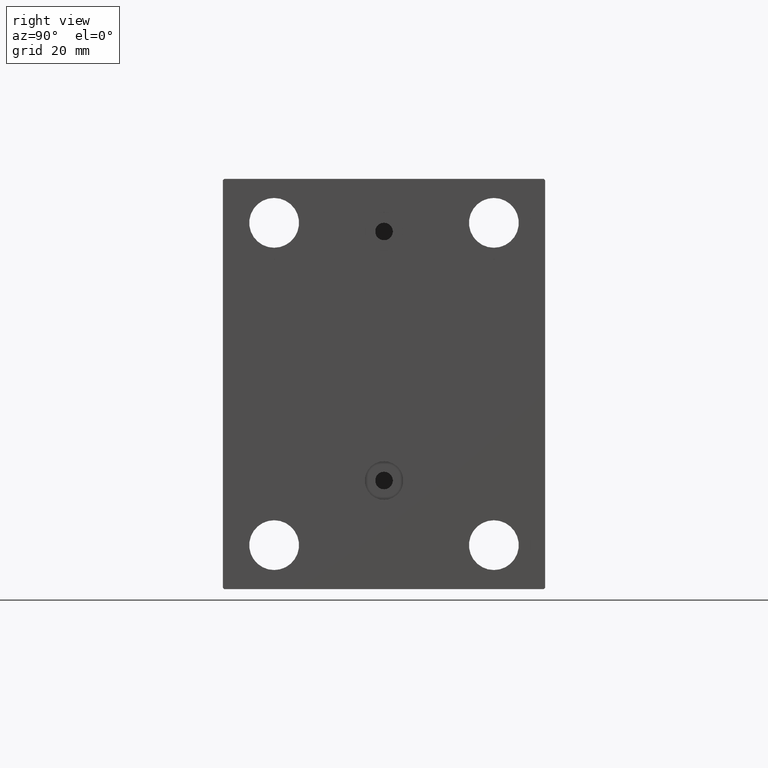
[diagram: clean part render]
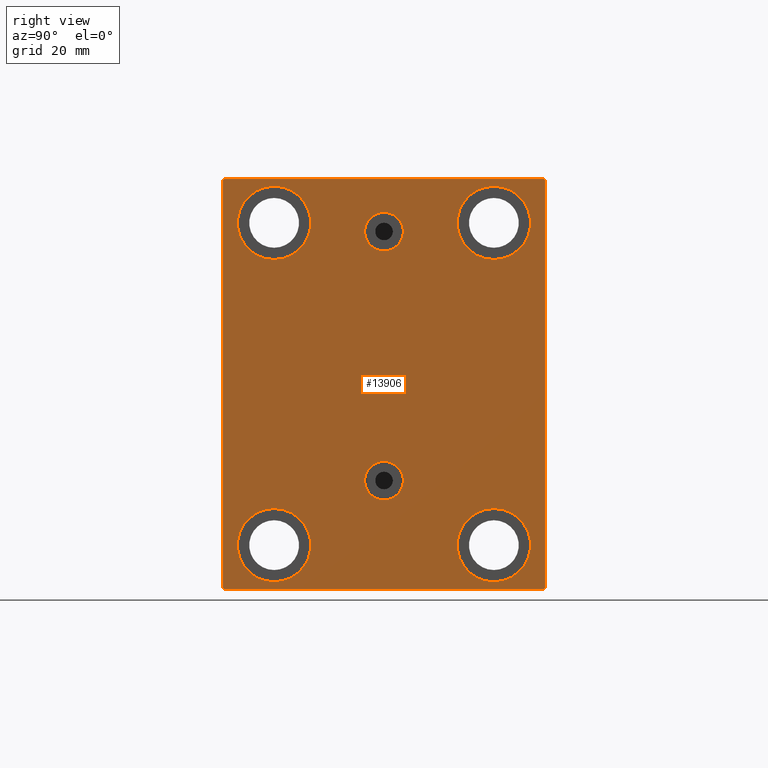
[diagram: same view with one face highlighted and labeled with its STEP entity id]
A machine part, right view. The second image highlights one B-rep face of the part: STEP entity #13906.
In plain terms, the highlighted planar face has unit normal (1, 0, 0).
Its self-contained STEP definition (entity closure, byte-faithful):
#26 = EDGE_CURVE ( 'NONE', #5852, #29, #45130, .T. ) ;
#29 = VERTEX_POINT ( 'NONE', #10822 ) ;
#534 = FACE_BOUND ( 'NONE', #12470, .T. ) ;
#661 = ORIENTED_EDGE ( 'NONE', *, *, #36600, .T. ) ;
#722 = CARTESIAN_POINT ( 'NONE',  ( 103.0000000000000000, 54.49999999999999289, 70.00000000000000000 ) ) ;
#1111 = EDGE_CURVE ( 'NONE', #6587, #8981, #29712, .T. ) ;
#1126 = CIRCLE ( 'NONE', #9983, 12.49999999999999645 ) ;
#1197 = CARTESIAN_POINT ( 'NONE',  ( 103.0000000000000000, -37.50000000000000711, 55.00000000000000711 ) ) ;
#1222 = FACE_BOUND ( 'NONE', #12784, .T. ) ;
#2222 = VERTEX_POINT ( 'NONE', #4690 ) ;
#2395 = CARTESIAN_POINT ( 'NONE',  ( 103.0000000000000000, -62.25000000000000000, 62.25000000000000000 ) ) ;
#2611 = CIRCLE ( 'NONE', #4808, 12.49999999999999645 ) ;
#2903 = VERTEX_POINT ( 'NONE', #11036 ) ;
#3765 = FACE_BOUND ( 'NONE', #29857, .T. ) ;
#3789 = DIRECTION ( 'NONE',  ( -0.000000000000000000, 0.7071067811865574537, -0.7071067811865376918 ) ) ;
#3891 = CARTESIAN_POINT ( 'NONE',  ( 103.0000000000000000, 4.041334437186266200E-15, -33.00000000000000000 ) ) ;
#3905 = EDGE_CURVE ( 'NONE', #2903, #23217, #23894, .T. ) ;
#3912 = DIRECTION ( 'NONE',  ( 0.000000000000000000, 0.000000000000000000, 1.000000000000000000 ) ) ;
#3958 = ORIENTED_EDGE ( 'NONE', *, *, #38958, .T. ) ;
#4312 = CIRCLE ( 'NONE', #14604, 12.49999999999999645 ) ;
#4409 = ORIENTED_EDGE ( 'NONE', *, *, #20622, .T. ) ;
#4643 = AXIS2_PLACEMENT_3D ( 'NONE', #35618, #32384, #39523 ) ;
#4690 = CARTESIAN_POINT ( 'NONE',  ( 103.0000000000000000, -37.50000000000000711, 42.50000000000000711 ) ) ;
#4711 = EDGE_CURVE ( 'NONE', #23593, #10829, #2611, .T. ) ;
#4718 = AXIS2_PLACEMENT_3D ( 'NONE', #14682, #28709, #35861 ) ;
#4808 = AXIS2_PLACEMENT_3D ( 'NONE', #34818, #44260, #9505 ) ;
#5220 = EDGE_CURVE ( 'NONE', #14540, #20967, #1126, .T. ) ;
#5779 = CARTESIAN_POINT ( 'NONE',  ( 103.0000000000000000, -55.00000000000000711, -70.00000000000002842 ) ) ;
#5852 = VERTEX_POINT ( 'NONE', #24451 ) ;
#6143 = AXIS2_PLACEMENT_3D ( 'NONE', #6203, #16804, #45555 ) ;
#6203 = CARTESIAN_POINT ( 'NONE',  ( 103.0000000000000000, 4.041334437186266200E-15, -33.00000000000000000 ) ) ;
#6587 = VERTEX_POINT ( 'NONE', #39641 ) ;
#6742 = EDGE_CURVE ( 'NONE', #2222, #11136, #30563, .T. ) ;
#7073 = AXIS2_PLACEMENT_3D ( 'NONE', #1197, #15242, #8332 ) ;
#7226 = DIRECTION ( 'NONE',  ( 1.000000000000000000, 0.000000000000000000, 0.000000000000000000 ) ) ;
#7704 = LINE ( 'NONE', #28870, #24918 ) ;
#7744 = VECTOR ( 'NONE', #19674, 1000.000000000000114 ) ;
#8318 = VECTOR ( 'NONE', #44903, 1000.000000000000000 ) ;
#8332 = DIRECTION ( 'NONE',  ( 0.000000000000000000, 0.000000000000000000, 1.000000000000000000 ) ) ;
#8981 = VERTEX_POINT ( 'NONE', #42776 ) ;
#9041 = CIRCLE ( 'NONE', #4643, 12.49999999999999645 ) ;
#9460 = CARTESIAN_POINT ( 'NONE',  ( 103.0000000000000000, 62.24999999999999289, 62.24999999999999289 ) ) ;
#9505 = DIRECTION ( 'NONE',  ( 0.000000000000000000, 0.000000000000000000, 1.000000000000000000 ) ) ;
#9635 = EDGE_CURVE ( 'NONE', #31688, #32731, #44002, .T. ) ;
#9983 = AXIS2_PLACEMENT_3D ( 'NONE', #21562, #39741, #32834 ) ;
#10011 = EDGE_CURVE ( 'NONE', #11136, #2222, #23328, .T. ) ;
#10684 = FACE_BOUND ( 'NONE', #33315, .T. ) ;
#10729 = VERTEX_POINT ( 'NONE', #37789 ) ;
#10822 = CARTESIAN_POINT ( 'NONE',  ( 103.0000000000000000, 4.847152031025224453E-15, -26.41999999999999815 ) ) ;
#10829 = VERTEX_POINT ( 'NONE', #42596 ) ;
#11036 = CARTESIAN_POINT ( 'NONE',  ( 103.0000000000000000, -37.50000000000002132, -42.49999999999999289 ) ) ;
#11136 = VERTEX_POINT ( 'NONE', #18157 ) ;
#11202 = LINE ( 'NONE', #24550, #26746 ) ;
#11784 = EDGE_CURVE ( 'NONE', #34603, #29951, #20255, .T. ) ;
#12470 = EDGE_LOOP ( 'NONE', ( #16895, #12720 ) ) ;
#12720 = ORIENTED_EDGE ( 'NONE', *, *, #5220, .T. ) ;
#12784 = EDGE_LOOP ( 'NONE', ( #29356, #16610 ) ) ;
#13052 = ORIENTED_EDGE ( 'NONE', *, *, #17498, .T. ) ;
#13779 = VECTOR ( 'NONE', #19394, 1000.000000000000000 ) ;
#13906 = ADVANCED_FACE ( 'NONE', ( #3765, #35763, #1222, #10684, #534, #24706, #18050 ), #31850, .T. ) ;
#14540 = VERTEX_POINT ( 'NONE', #33554 ) ;
#14578 = CARTESIAN_POINT ( 'NONE',  ( 103.0000000000000000, 54.99999999999999289, 69.50000000000000000 ) ) ;
#14604 = AXIS2_PLACEMENT_3D ( 'NONE', #19202, #23537, #41035 ) ;
#14682 = CARTESIAN_POINT ( 'NONE',  ( 103.0000000000000000, -8.775864102628257178E-15, 52.00000000000000711 ) ) ;
#15090 = ORIENTED_EDGE ( 'NONE', *, *, #16561, .F. ) ;
#15101 = AXIS2_PLACEMENT_3D ( 'NONE', #29152, #17903, #39294 ) ;
#15242 = DIRECTION ( 'NONE',  ( -1.000000000000000000, -0.000000000000000000, -0.000000000000000000 ) ) ;
#15717 = CIRCLE ( 'NONE', #25992, 12.49999999999999645 ) ;
#15795 = ORIENTED_EDGE ( 'NONE', *, *, #40864, .T. ) ;
#16275 = CARTESIAN_POINT ( 'NONE',  ( 103.0000000000000000, -37.50000000000002132, -67.49999999999998579 ) ) ;
#16561 = EDGE_CURVE ( 'NONE', #8981, #6587, #31397, .T. ) ;
#16610 = ORIENTED_EDGE ( 'NONE', *, *, #4711, .T. ) ;
#16804 = DIRECTION ( 'NONE',  ( 1.000000000000000000, 0.000000000000000000, -0.000000000000000000 ) ) ;
#16895 = ORIENTED_EDGE ( 'NONE', *, *, #39367, .T. ) ;
#16956 = ORIENTED_EDGE ( 'NONE', *, *, #6742, .T. ) ;
#17123 = EDGE_LOOP ( 'NONE', ( #661, #25490 ) ) ;
#17498 = EDGE_CURVE ( 'NONE', #29951, #23943, #19831, .T. ) ;
#17903 = DIRECTION ( 'NONE',  ( -1.000000000000000000, -0.000000000000000000, -0.000000000000000000 ) ) ;
#18050 = FACE_OUTER_BOUND ( 'NONE', #35131, .T. ) ;
#18157 = CARTESIAN_POINT ( 'NONE',  ( 103.0000000000000000, -37.50000000000000711, 67.50000000000000000 ) ) ;
#18776 = CARTESIAN_POINT ( 'NONE',  ( 103.0000000000000000, 54.99999999999999289, 70.00000000000000000 ) ) ;
#19202 = CARTESIAN_POINT ( 'NONE',  ( 103.0000000000000000, 37.49999999999997868, -54.99999999999999289 ) ) ;
#19244 = ORIENTED_EDGE ( 'NONE', *, *, #11784, .T. ) ;
#19394 = DIRECTION ( 'NONE',  ( 0.000000000000000000, 0.000000000000000000, -1.000000000000000000 ) ) ;
#19674 = DIRECTION ( 'NONE',  ( 0.000000000000000000, -0.7071067811865474617, -0.7071067811865474617 ) ) ;
#19831 = LINE ( 'NONE', #9460, #21869 ) ;
#20139 = AXIS2_PLACEMENT_3D ( 'NONE', #3891, #34765, #20960 ) ;
#20255 = LINE ( 'NONE', #34973, #32292 ) ;
#20557 = CARTESIAN_POINT ( 'NONE',  ( 103.0000000000000000, -8.775864102628257178E-15, 52.00000000000000711 ) ) ;
#20622 = EDGE_CURVE ( 'NONE', #32731, #36615, #7704, .T. ) ;
#20960 = DIRECTION ( 'NONE',  ( 0.000000000000000000, 0.000000000000000000, 1.000000000000000000 ) ) ;
#20967 = VERTEX_POINT ( 'NONE', #45575 ) ;
#21274 = DIRECTION ( 'NONE',  ( 0.000000000000000000, 0.000000000000000000, -1.000000000000000000 ) ) ;
#21562 = CARTESIAN_POINT ( 'NONE',  ( 103.0000000000000000, 37.50000000000000711, 55.00000000000000711 ) ) ;
#21869 = VECTOR ( 'NONE', #37312, 1000.000000000000114 ) ;
#22175 = ORIENTED_EDGE ( 'NONE', *, *, #23393, .T. ) ;
#22367 = VERTEX_POINT ( 'NONE', #41565 ) ;
#23080 = DIRECTION ( 'NONE',  ( 0.000000000000000000, 0.000000000000000000, -1.000000000000000000 ) ) ;
#23109 = LINE ( 'NONE', #2395, #7744 ) ;
#23217 = VERTEX_POINT ( 'NONE', #16275 ) ;
#23328 = CIRCLE ( 'NONE', #35838, 12.49999999999999645 ) ;
#23373 = ORIENTED_EDGE ( 'NONE', *, *, #43366, .T. ) ;
#23393 = EDGE_CURVE ( 'NONE', #23943, #10729, #33264, .T. ) ;
#23537 = DIRECTION ( 'NONE',  ( -1.000000000000000000, -0.000000000000000000, -0.000000000000000000 ) ) ;
#23593 = VERTEX_POINT ( 'NONE', #43762 ) ;
#23894 = CIRCLE ( 'NONE', #15101, 12.49999999999999645 ) ;
#23943 = VERTEX_POINT ( 'NONE', #722 ) ;
#24451 = CARTESIAN_POINT ( 'NONE',  ( 103.0000000000000000, 4.041334437186266200E-15, -39.58000000000000540 ) ) ;
#24498 = EDGE_CURVE ( 'NONE', #10829, #23593, #4312, .T. ) ;
#24550 = CARTESIAN_POINT ( 'NONE',  ( 103.0000000000000000, 62.25000000000000711, -62.25000000000000711 ) ) ;
#24706 = FACE_BOUND ( 'NONE', #17123, .T. ) ;
#24918 = VECTOR ( 'NONE', #3789, 999.9999999999998863 ) ;
#25085 = CARTESIAN_POINT ( 'NONE',  ( 103.0000000000000000, -37.50000000000000711, 55.00000000000000711 ) ) ;
#25261 = CIRCLE ( 'NONE', #6143, 6.580000000000002736 ) ;
#25490 = ORIENTED_EDGE ( 'NONE', *, *, #3905, .T. ) ;
#25992 = AXIS2_PLACEMENT_3D ( 'NONE', #32255, #43066, #39846 ) ;
#26616 = EDGE_LOOP ( 'NONE', ( #40657, #37321 ) ) ;
#26746 = VECTOR ( 'NONE', #31452, 1000.000000000000114 ) ;
#27690 = ORIENTED_EDGE ( 'NONE', *, *, #1111, .F. ) ;
#28709 = DIRECTION ( 'NONE',  ( 1.000000000000000000, 0.000000000000000000, 0.000000000000000000 ) ) ;
#28770 = DIRECTION ( 'NONE',  ( -1.000000000000000000, -0.000000000000000000, -0.000000000000000000 ) ) ;
#28870 = CARTESIAN_POINT ( 'NONE',  ( 103.0000000000000000, -62.24999999999927525, -62.25000000000100897 ) ) ;
#29152 = CARTESIAN_POINT ( 'NONE',  ( 103.0000000000000000, -37.50000000000002132, -54.99999999999999289 ) ) ;
#29356 = ORIENTED_EDGE ( 'NONE', *, *, #24498, .T. ) ;
#29712 = CIRCLE ( 'NONE', #4718, 6.580000000000002736 ) ;
#29857 = EDGE_LOOP ( 'NONE', ( #27690, #15090 ) ) ;
#29951 = VERTEX_POINT ( 'NONE', #14578 ) ;
#30563 = CIRCLE ( 'NONE', #7073, 12.49999999999999645 ) ;
#31397 = CIRCLE ( 'NONE', #32878, 6.580000000000002736 ) ;
#31452 = DIRECTION ( 'NONE',  ( -0.000000000000000000, 0.7071067811865474617, 0.7071067811865474617 ) ) ;
#31688 = VERTEX_POINT ( 'NONE', #39253 ) ;
#31850 = PLANE ( 'NONE',  #32816 ) ;
#32255 = CARTESIAN_POINT ( 'NONE',  ( 103.0000000000000000, 37.50000000000000711, 55.00000000000000711 ) ) ;
#32292 = VECTOR ( 'NONE', #37742, 1000.000000000000000 ) ;
#32384 = DIRECTION ( 'NONE',  ( -1.000000000000000000, -0.000000000000000000, -0.000000000000000000 ) ) ;
#32731 = VERTEX_POINT ( 'NONE', #34042 ) ;
#32816 = AXIS2_PLACEMENT_3D ( 'NONE', #38762, #7226, #21274 ) ;
#32834 = DIRECTION ( 'NONE',  ( 0.000000000000000000, 0.000000000000000000, 1.000000000000000000 ) ) ;
#32843 = CARTESIAN_POINT ( 'NONE',  ( 103.0000000000000000, -54.50000000000003553, -70.00000000000002842 ) ) ;
#32878 = AXIS2_PLACEMENT_3D ( 'NONE', #20557, #34590, #23080 ) ;
#33264 = LINE ( 'NONE', #18776, #35294 ) ;
#33315 = EDGE_LOOP ( 'NONE', ( #16956, #41962 ) ) ;
#33554 = CARTESIAN_POINT ( 'NONE',  ( 103.0000000000000000, 37.50000000000000711, 67.50000000000000000 ) ) ;
#33646 = CARTESIAN_POINT ( 'NONE',  ( 103.0000000000000000, -55.00000000000000711, 69.99999999999998579 ) ) ;
#33957 = CARTESIAN_POINT ( 'NONE',  ( 103.0000000000000000, 55.00000000000002132, -69.50000000000000000 ) ) ;
#34042 = CARTESIAN_POINT ( 'NONE',  ( 103.0000000000000000, -55.00000000000000711, -69.50000000000007105 ) ) ;
#34590 = DIRECTION ( 'NONE',  ( 1.000000000000000000, 0.000000000000000000, 0.000000000000000000 ) ) ;
#34603 = VERTEX_POINT ( 'NONE', #33957 ) ;
#34765 = DIRECTION ( 'NONE',  ( 1.000000000000000000, 0.000000000000000000, -0.000000000000000000 ) ) ;
#34818 = CARTESIAN_POINT ( 'NONE',  ( 103.0000000000000000, 37.49999999999997868, -54.99999999999999289 ) ) ;
#34973 = CARTESIAN_POINT ( 'NONE',  ( 103.0000000000000000, 55.00000000000002132, -70.00000000000000000 ) ) ;
#35131 = EDGE_LOOP ( 'NONE', ( #22175, #23373, #41459, #4409, #15795, #3958, #19244, #13052 ) ) ;
#35294 = VECTOR ( 'NONE', #43611, 1000.000000000000000 ) ;
#35618 = CARTESIAN_POINT ( 'NONE',  ( 103.0000000000000000, -37.50000000000002132, -54.99999999999999289 ) ) ;
#35763 = FACE_BOUND ( 'NONE', #26616, .T. ) ;
#35838 = AXIS2_PLACEMENT_3D ( 'NONE', #25085, #28770, #3912 ) ;
#35861 = DIRECTION ( 'NONE',  ( 0.000000000000000000, 0.000000000000000000, -1.000000000000000000 ) ) ;
#36600 = EDGE_CURVE ( 'NONE', #23217, #2903, #9041, .T. ) ;
#36615 = VERTEX_POINT ( 'NONE', #32843 ) ;
#37312 = DIRECTION ( 'NONE',  ( -0.000000000000000000, -0.7071067811865474617, 0.7071067811865474617 ) ) ;
#37321 = ORIENTED_EDGE ( 'NONE', *, *, #38558, .F. ) ;
#37742 = DIRECTION ( 'NONE',  ( 0.000000000000000000, -1.982541115402065110E-16, 1.000000000000000000 ) ) ;
#37789 = CARTESIAN_POINT ( 'NONE',  ( 103.0000000000000000, -54.50000000000000711, 69.99999999999998579 ) ) ;
#38558 = EDGE_CURVE ( 'NONE', #29, #5852, #25261, .T. ) ;
#38762 = CARTESIAN_POINT ( 'NONE',  ( 103.0000000000000000, 0.000000000000000000, 0.000000000000000000 ) ) ;
#38958 = EDGE_CURVE ( 'NONE', #22367, #34603, #11202, .T. ) ;
#39253 = CARTESIAN_POINT ( 'NONE',  ( 103.0000000000000000, -55.00000000000000711, 69.49999999999998579 ) ) ;
#39294 = DIRECTION ( 'NONE',  ( 0.000000000000000000, 0.000000000000000000, 1.000000000000000000 ) ) ;
#39367 = EDGE_CURVE ( 'NONE', #20967, #14540, #15717, .T. ) ;
#39523 = DIRECTION ( 'NONE',  ( 0.000000000000000000, 0.000000000000000000, 1.000000000000000000 ) ) ;
#39641 = CARTESIAN_POINT ( 'NONE',  ( 103.0000000000000000, -8.775864102628257178E-15, 45.42000000000000171 ) ) ;
#39741 = DIRECTION ( 'NONE',  ( -1.000000000000000000, -0.000000000000000000, -0.000000000000000000 ) ) ;
#39846 = DIRECTION ( 'NONE',  ( 0.000000000000000000, 0.000000000000000000, 1.000000000000000000 ) ) ;
#40657 = ORIENTED_EDGE ( 'NONE', *, *, #26, .F. ) ;
#40864 = EDGE_CURVE ( 'NONE', #36615, #22367, #40997, .T. ) ;
#40997 = LINE ( 'NONE', #5779, #8318 ) ;
#41035 = DIRECTION ( 'NONE',  ( 0.000000000000000000, 0.000000000000000000, 1.000000000000000000 ) ) ;
#41459 = ORIENTED_EDGE ( 'NONE', *, *, #9635, .T. ) ;
#41565 = CARTESIAN_POINT ( 'NONE',  ( 103.0000000000000000, 54.50000000000002132, -70.00000000000000000 ) ) ;
#41962 = ORIENTED_EDGE ( 'NONE', *, *, #10011, .T. ) ;
#42596 = CARTESIAN_POINT ( 'NONE',  ( 103.0000000000000000, 37.49999999999997868, -67.49999999999998579 ) ) ;
#42776 = CARTESIAN_POINT ( 'NONE',  ( 103.0000000000000000, -7.970046508789298136E-15, 58.58000000000000540 ) ) ;
#43066 = DIRECTION ( 'NONE',  ( -1.000000000000000000, -0.000000000000000000, -0.000000000000000000 ) ) ;
#43366 = EDGE_CURVE ( 'NONE', #10729, #31688, #23109, .T. ) ;
#43611 = DIRECTION ( 'NONE',  ( 0.000000000000000000, -1.000000000000000000, -1.261617073437677999E-16 ) ) ;
#43762 = CARTESIAN_POINT ( 'NONE',  ( 103.0000000000000000, 37.49999999999997868, -42.49999999999999289 ) ) ;
#44002 = LINE ( 'NONE', #33646, #13779 ) ;
#44260 = DIRECTION ( 'NONE',  ( -1.000000000000000000, -0.000000000000000000, -0.000000000000000000 ) ) ;
#44903 = DIRECTION ( 'NONE',  ( 0.000000000000000000, 1.000000000000000000, 2.523234146875355012E-16 ) ) ;
#45130 = CIRCLE ( 'NONE', #20139, 6.580000000000002736 ) ;
#45555 = DIRECTION ( 'NONE',  ( 0.000000000000000000, 0.000000000000000000, 1.000000000000000000 ) ) ;
#45575 = CARTESIAN_POINT ( 'NONE',  ( 103.0000000000000000, 37.50000000000000711, 42.50000000000000711 ) ) ;